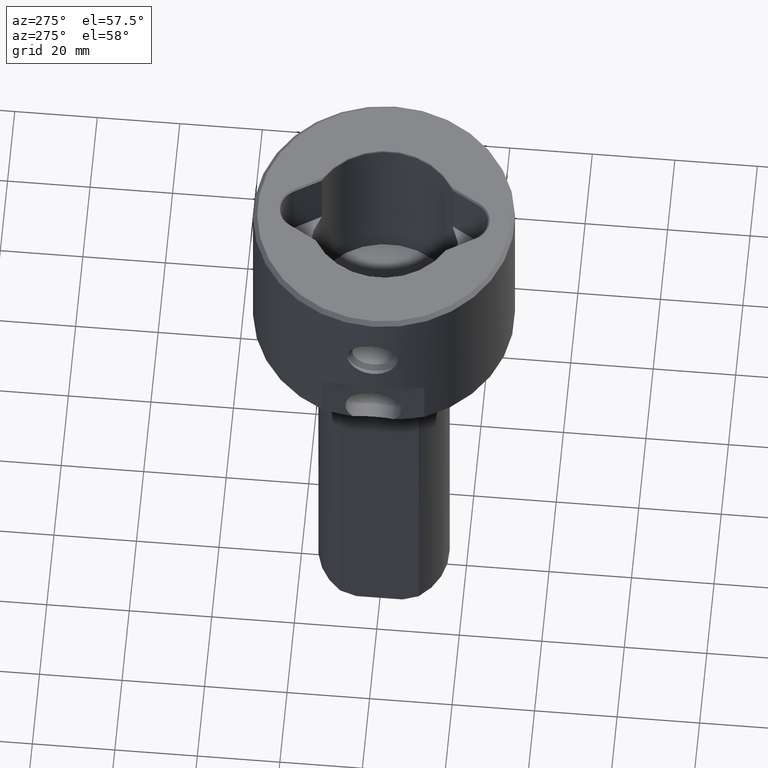
[diagram: clean part render]
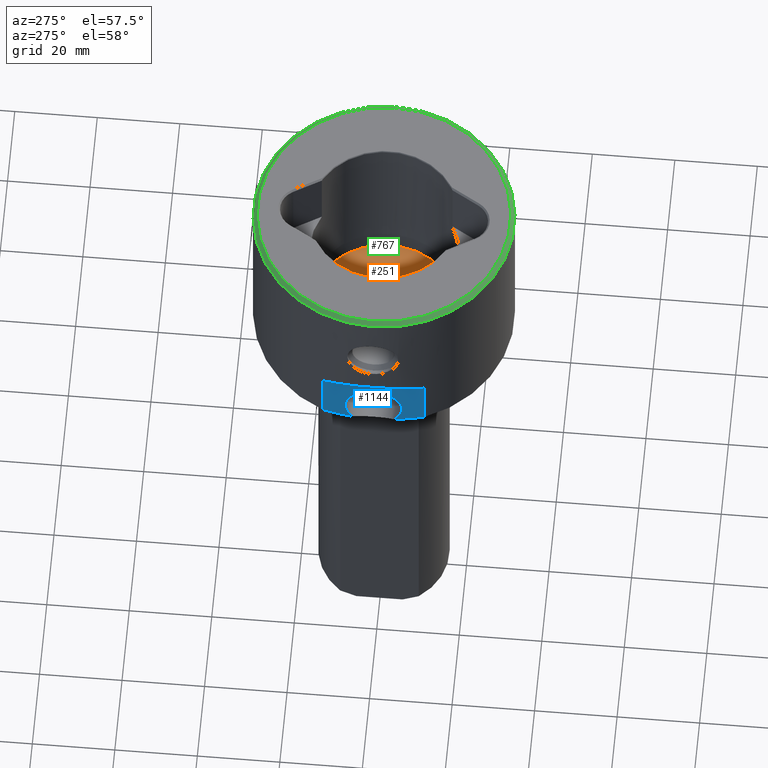
[diagram: same view with three faces highlighted in distinct colors, each labeled with its STEP entity id]
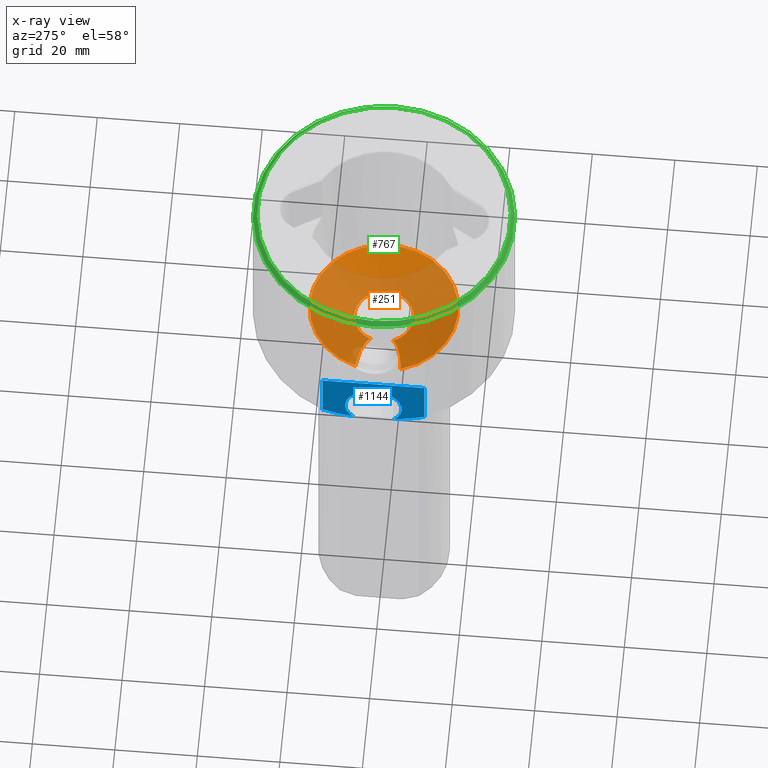
[diagram: x-ray of the same camera — body ghosted, the three highlighted faces saturated]
A machine part, auxiliary view with three faces highlighted in distinct colors.
The next image is the same camera in x-ray (body ghosted, the three faces saturated) — at least one of them is partly hidden behind the body in this view.
Their STEP definitions:

[orange] entity #251 — the highlighted conical surface has half-angle 70 deg.
#18 = CARTESIAN_POINT ( 'NONE',  ( -9.952558135182792753, 4.327179257612058016, -44.60151783015965776 ) ) ;
#97 = CARTESIAN_POINT ( 'NONE',  ( -8.227909259180822943, -3.692058294718687961, -45.26908084020720935 ) ) ;
#123 = CARTESIAN_POINT ( 'NONE',  ( 0.0000000000000000000, 0.0000000000000000000, -45.93087853007491361 ) ) ;
#125 = CARTESIAN_POINT ( 'NONE',  ( -7.411388599976899805, 3.278204621278549613, -45.60185016130601099 ) ) ;
#142 = B_SPLINE_CURVE_WITH_KNOTS ( 'NONE', 3,
 ( #654, #148, #1211, #1483, #1732, #1455, #1622, #18, #1322, #1061, #391, #125, #911, #273 ),
 .UNSPECIFIED., .F., .F.,
 ( 4, 2, 2, 2, 2, 2, 4 ),
 ( 0.001178261122928602085, 0.004078453685199937701, 0.006978646247471274183, 0.008428742528606938955, 0.009878838809742603727, 0.01132893509087826850, 0.01277903137201393327 ),
 .UNSPECIFIED. ) ;
#145 = VERTEX_POINT ( 'NONE', #747 ) ;
#148 = CARTESIAN_POINT ( 'NONE',  ( -16.22859241719893220, 5.436403773805147388, -42.32268432431284566 ) ) ;
#219 = AXIS2_PLACEMENT_3D ( 'NONE', #123, #1046, #256 ) ;
#250 = EDGE_CURVE ( 'NONE', #1371, #760, #1607, .T. ) ;
#251 = ADVANCED_FACE ( 'NONE', ( #1238 ), #688, .F. ) ;
#256 = DIRECTION ( 'NONE',  ( 1.000000000000000000, 0.0000000000000000000, 0.0000000000000000000 ) ) ;
#273 = CARTESIAN_POINT ( 'NONE',  ( -6.650929905835639921, 2.757740268346736023, -45.93087853007490651 ) ) ;
#289 = ORIENTED_EDGE ( 'NONE', *, *, #250, .T. ) ;
#361 = CARTESIAN_POINT ( 'NONE',  ( -8.647591155585143241, -3.868828942142455762, -45.10338040326255538 ) ) ;
#375 = CARTESIAN_POINT ( 'NONE',  ( -12.60742369322300505, -4.974291744531540438, -43.61881184046358584 ) ) ;
#390 = DIRECTION ( 'NONE',  ( 1.000000000000000000, 0.0000000000000000000, 0.0000000000000000000 ) ) ;
#391 = CARTESIAN_POINT ( 'NONE',  ( -8.229353170079122037, 3.692831171962911885, -45.26848633789317233 ) ) ;
#424 = CIRCLE ( 'NONE', #1556, 18.00000000000000000 ) ;
#501 = CARTESIAN_POINT ( 'NONE',  ( 0.0000000000000000000, 0.0000000000000000000, 951.4485357832083992 ) ) ;
#504 = CARTESIAN_POINT ( 'NONE',  ( -16.22819745588730100, -5.436380911248716252, -42.32282376836635507 ) ) ;
#556 = DIRECTION ( 'NONE',  ( -0.0000000000000000000, -0.0000000000000000000, -1.000000000000000000 ) ) ;
#617 = CARTESIAN_POINT ( 'NONE',  ( -7.025709045907139405, -3.031115366510974241, -45.76650404395257965 ) ) ;
#653 = EDGE_LOOP ( 'NONE', ( #1670, #1504, #289, #1654 ) ) ;
#654 = CARTESIAN_POINT ( 'NONE',  ( -17.14256343841258357, 5.489309497559776929, -42.00000000000000000 ) ) ;
#688 = CONICAL_SURFACE ( 'NONE', #1569, 2747.477419454672599, 1.221730476396036602 ) ;
#711 = VERTEX_POINT ( 'NONE', #1564 ) ;
#747 = CARTESIAN_POINT ( 'NONE',  ( -17.14256343841258712, -5.489309497559776929, -42.00000000000000000 ) ) ;
#749 = CARTESIAN_POINT ( 'NONE',  ( -7.417434559441274722, -3.272207817807922137, -45.60073064672852894 ) ) ;
#760 = VERTEX_POINT ( 'NONE', #1573 ) ;
#911 = CARTESIAN_POINT ( 'NONE',  ( -7.012361516030026998, 3.039391861956601826, -45.77009577875826096 ) ) ;
#1023 = CARTESIAN_POINT ( 'NONE',  ( -13.50759466753032711, -5.123268542052286101, -43.29385429920696993 ) ) ;
#1046 = DIRECTION ( 'NONE',  ( -0.0000000000000000000, -0.0000000000000000000, -1.000000000000000000 ) ) ;
#1061 = CARTESIAN_POINT ( 'NONE',  ( -8.651611653052105666, 3.870555427139979354, -45.10178846906217132 ) ) ;
#1069 = EDGE_CURVE ( 'NONE', #711, #145, #424, .T. ) ;
#1078 = CARTESIAN_POINT ( 'NONE',  ( 0.0000000000000000000, 0.0000000000000000000, -42.00000000000000000 ) ) ;
#1095 = DIRECTION ( 'NONE',  ( -1.000000000000000000, 0.0000000000000000000, 0.0000000000000000000 ) ) ;
#1114 = CARTESIAN_POINT ( 'NONE',  ( -6.650929905835639921, 2.757740268346736023, -45.93087853007490651 ) ) ;
#1160 = CARTESIAN_POINT ( 'NONE',  ( -6.833205513848491286, -2.899781567516482639, -45.84979327652319370 ) ) ;
#1171 = CARTESIAN_POINT ( 'NONE',  ( -9.931275399981435825, -4.342493809770374469, -44.60638836685973274 ) ) ;
#1211 = CARTESIAN_POINT ( 'NONE',  ( -15.31910871248162564, 5.354646910762014933, -42.64541245520003798 ) ) ;
#1238 = FACE_OUTER_BOUND ( 'NONE', #653, .T. ) ;
#1240 = EDGE_CURVE ( 'NONE', #760, #145, #1671, .T. ) ;
#1295 = CARTESIAN_POINT ( 'NONE',  ( -6.650929905835645251, -2.757740268346724921, -45.93087853007491361 ) ) ;
#1322 = CARTESIAN_POINT ( 'NONE',  ( -9.513165514355620189, 4.187969129770283239, -44.76829999233605406 ) ) ;
#1371 = VERTEX_POINT ( 'NONE', #1114 ) ;
#1419 = CARTESIAN_POINT ( 'NONE',  ( -7.617617286812301103, -3.382762448870290317, -45.51779805564478920 ) ) ;
#1429 = CARTESIAN_POINT ( 'NONE',  ( -15.31793541715394369, -5.354558346984777728, -42.64582733475223364 ) ) ;
#1444 = CARTESIAN_POINT ( 'NONE',  ( -17.14256343841258712, -5.489309497559776929, -42.00000000000000000 ) ) ;
#1455 = CARTESIAN_POINT ( 'NONE',  ( -11.27686255322357844, 4.683529655643834388, -44.10719578305269550 ) ) ;
#1483 = CARTESIAN_POINT ( 'NONE',  ( -13.51119081381207288, 5.123789162297266664, -43.29256192978570539 ) ) ;
#1504 = ORIENTED_EDGE ( 'NONE', *, *, #1552, .T. ) ;
#1552 = EDGE_CURVE ( 'NONE', #711, #1371, #142, .T. ) ;
#1556 = AXIS2_PLACEMENT_3D ( 'NONE', #1078, #556, #1095 ) ;
#1564 = CARTESIAN_POINT ( 'NONE',  ( -17.14256343841258357, 5.489309497559776929, -42.00000000000000000 ) ) ;
#1569 = AXIS2_PLACEMENT_3D ( 'NONE', #501, #1731, #390 ) ;
#1573 = CARTESIAN_POINT ( 'NONE',  ( -6.650929905835645251, -2.757740268346724921, -45.93087853007491361 ) ) ;
#1607 = CIRCLE ( 'NONE', #219, 7.200000000000000178 ) ;
#1622 = CARTESIAN_POINT ( 'NONE',  ( -10.83362282545898658, 4.574736681123973803, -44.27126027642211881 ) ) ;
#1654 = ORIENTED_EDGE ( 'NONE', *, *, #1240, .T. ) ;
#1670 = ORIENTED_EDGE ( 'NONE', *, *, #1069, .F. ) ;
#1671 = B_SPLINE_CURVE_WITH_KNOTS ( 'NONE', 3,
 ( #1295, #1160, #617, #749, #1419, #97, #361, #1171, #1707, #375, #1023, #1429, #504, #1444 ),
 .UNSPECIFIED., .F., .F.,
 ( 4, 2, 2, 2, 2, 2, 4 ),
 ( 0.001253697054113798526, 0.001985376607094136749, 0.002717056160074474321, 0.004180415266035151199, 0.007107133477956508426, 0.01003385168987786652, 0.01296056990179922375 ),
 .UNSPECIFIED. ) ;
#1707 = CARTESIAN_POINT ( 'NONE',  ( -10.82196367763201650, -4.583941856030605777, -44.27418785012874736 ) ) ;
#1731 = DIRECTION ( 'NONE',  ( 0.0000000000000000000, 0.0000000000000000000, 1.000000000000000000 ) ) ;
#1732 = CARTESIAN_POINT ( 'NONE',  ( -12.61266044193465774, 4.975164055077202718, -43.61692121384217558 ) ) ;

[blue] entity #1144 — the highlighted planar face has unit normal (1, 0, 0).
#15 = FACE_OUTER_BOUND ( 'NONE', #78, .T. ) ;
#19 = VECTOR ( 'NONE', #127, 1000.000000000000000 ) ;
#46 = CARTESIAN_POINT ( 'NONE',  ( -29.13500000000000156, -6.170436145164875263, -45.67976493171396868 ) ) ;
#47 = PLANE ( 'NONE',  #1368 ) ;
#74 = DIRECTION ( 'NONE',  ( -0.0000000000000000000, -0.0000000000000000000, -1.000000000000000000 ) ) ;
#78 = EDGE_LOOP ( 'NONE', ( #427, #1092, #393, #200, #187, #1722 ) ) ;
#120 = CARTESIAN_POINT ( 'NONE',  ( -29.13500000000001933, 12.32578597899539652, -43.79999999999999005 ) ) ;
#127 = DIRECTION ( 'NONE',  ( 0.0000000000000000000, 0.0000000000000000000, 1.000000000000000000 ) ) ;
#187 = ORIENTED_EDGE ( 'NONE', *, *, #1588, .T. ) ;
#200 = ORIENTED_EDGE ( 'NONE', *, *, #436, .T. ) ;
#254 = CARTESIAN_POINT ( 'NONE',  ( -29.13500000000000512, 6.172300948374835450, -45.67945512524126883 ) ) ;
#269 = CARTESIAN_POINT ( 'NONE',  ( -29.13499999999999801, 9.890781248021655259, -44.67229161043078278 ) ) ;
#298 = DIRECTION ( 'NONE',  ( 1.000000000000000000, 0.0000000000000000000, 0.0000000000000000000 ) ) ;
#314 = CARTESIAN_POINT ( 'NONE',  ( -29.13500000000000512, -12.32578597899539830, -43.79999999999999716 ) ) ;
#331 = VERTEX_POINT ( 'NONE', #793 ) ;
#393 = ORIENTED_EDGE ( 'NONE', *, *, #1354, .T. ) ;
#401 = CARTESIAN_POINT ( 'NONE',  ( -29.13500000000000512, -4.908514856564666573, -45.88941245977468952 ) ) ;
#427 = ORIENTED_EDGE ( 'NONE', *, *, #1310, .T. ) ;
#436 = EDGE_CURVE ( 'NONE', #859, #331, #960, .T. ) ;
#440 = CARTESIAN_POINT ( 'NONE',  ( -29.13500000000000512, -7.419201499962479573, -45.39359722333632874 ) ) ;
#486 = CIRCLE ( 'NONE', #1191, 6.857987299999999564 ) ;
#514 = CARTESIAN_POINT ( 'NONE',  ( -29.13500000000000512, -12.32578597899539830, -43.79999999999999716 ) ) ;
#552 = CARTESIAN_POINT ( 'NONE',  ( -29.13500000000000512, 0.0000000000000000000, -41.09999999999998721 ) ) ;
#639 = CARTESIAN_POINT ( 'NONE',  ( -29.13500000000000512, -31.63500000000000512, -30.79999999999999716 ) ) ;
#703 = CARTESIAN_POINT ( 'NONE',  ( -29.13500000000000867, -11.12539445642427438, -44.26770251298283654 ) ) ;
#758 = VERTEX_POINT ( 'NONE', #1405 ) ;
#773 = CARTESIAN_POINT ( 'NONE',  ( -29.13500000000000156, 11.72461879510585803, -44.03422974699599024 ) ) ;
#793 = CARTESIAN_POINT ( 'NONE',  ( -29.13500000000000512, -12.32578597899542494, -30.79999999999999716 ) ) ;
#819 = CARTESIAN_POINT ( 'NONE',  ( -29.13500000000000512, -31.63500000000000512, -30.79999999999999716 ) ) ;
#859 = VERTEX_POINT ( 'NONE', #514 ) ;
#878 = VECTOR ( 'NONE', #1047, 1000.000000000000000 ) ;
#960 = LINE ( 'NONE', #1080, #19 ) ;
#962 = DIRECTION ( 'NONE',  ( 1.000000000000000000, 0.0000000000000000000, 0.0000000000000000000 ) ) ;
#1008 = VERTEX_POINT ( 'NONE', #401 ) ;
#1041 = CARTESIAN_POINT ( 'NONE',  ( -29.13500000000000512, 9.275794440310253464, -44.86479439027544203 ) ) ;
#1047 = DIRECTION ( 'NONE',  ( -0.0000000000000000000, 1.000000000000000000, -0.0000000000000000000 ) ) ;
#1055 = CARTESIAN_POINT ( 'NONE',  ( -29.13500000000000867, 4.908514856564326401, -45.88941245977504479 ) ) ;
#1056 = CARTESIAN_POINT ( 'NONE',  ( -29.13500000000000512, 11.11493347922117358, -44.25714856644276551 ) ) ;
#1071 = VECTOR ( 'NONE', #74, 1000.000000000000000 ) ;
#1080 = CARTESIAN_POINT ( 'NONE',  ( -29.13500000000000512, -12.32578597899540718, -50.79999999999999716 ) ) ;
#1092 = ORIENTED_EDGE ( 'NONE', *, *, #1677, .T. ) ;
#1101 = DIRECTION ( 'NONE',  ( 0.0000000000000000000, 0.0000000000000000000, -1.000000000000000000 ) ) ;
#1105 = DIRECTION ( 'NONE',  ( 0.0000000000000000000, 0.0000000000000000000, -1.000000000000000000 ) ) ;
#1108 = CARTESIAN_POINT ( 'NONE',  ( -29.13499999999999801, -9.893950608018712956, -44.68875488735892532 ) ) ;
#1121 = B_SPLINE_CURVE_WITH_KNOTS ( 'NONE', 3,
 ( #120, #773, #1056, #269, #1041, #1337, #254, #1195 ),
 .UNSPECIFIED., .F., .F.,
 ( 4, 2, 2, 4 ),
 ( 0.02408350280861197221, 0.02599435145048144963, 0.02790520009235093052, 0.03172689737608988536 ),
 .UNSPECIFIED. ) ;
#1144 = ADVANCED_FACE ( 'NONE', ( #15 ), #47, .F. ) ;
#1149 = CARTESIAN_POINT ( 'NONE',  ( -29.13500000000001933, 12.32578597899539652, -43.79999999999999005 ) ) ;
#1191 = AXIS2_PLACEMENT_3D ( 'NONE', #552, #962, #1101 ) ;
#1195 = CARTESIAN_POINT ( 'NONE',  ( -29.13500000000000867, 4.908514856564326401, -45.88941245977504479 ) ) ;
#1237 = CARTESIAN_POINT ( 'NONE',  ( -29.13500000000000512, -4.908514856564666573, -45.88941245977468952 ) ) ;
#1255 = B_SPLINE_CURVE_WITH_KNOTS ( 'NONE', 3,
 ( #1237, #46, #440, #1108, #703, #314 ),
 .UNSPECIFIED., .F., .F.,
 ( 4, 2, 4 ),
 ( 0.04148733940963419964, 0.04530998257043347688, 0.04913262573123276106 ),
 .UNSPECIFIED. ) ;
#1274 = CARTESIAN_POINT ( 'NONE',  ( -29.13500000000000512, 12.32578597899540718, -50.79999999999999716 ) ) ;
#1310 = EDGE_CURVE ( 'NONE', #1439, #1522, #1121, .T. ) ;
#1327 = LINE ( 'NONE', #639, #878 ) ;
#1337 = CARTESIAN_POINT ( 'NONE',  ( -29.13500000000000867, 7.421317262977400020, -45.39303420204430495 ) ) ;
#1354 = EDGE_CURVE ( 'NONE', #1008, #859, #1255, .T. ) ;
#1368 = AXIS2_PLACEMENT_3D ( 'NONE', #819, #298, #1105 ) ;
#1405 = CARTESIAN_POINT ( 'NONE',  ( -29.13500000000000512, 12.32578597899542494, -30.79999999999999716 ) ) ;
#1439 = VERTEX_POINT ( 'NONE', #1149 ) ;
#1471 = EDGE_CURVE ( 'NONE', #758, #1439, #1708, .T. ) ;
#1522 = VERTEX_POINT ( 'NONE', #1055 ) ;
#1588 = EDGE_CURVE ( 'NONE', #331, #758, #1327, .T. ) ;
#1677 = EDGE_CURVE ( 'NONE', #1522, #1008, #486, .T. ) ;
#1708 = LINE ( 'NONE', #1274, #1071 ) ;
#1722 = ORIENTED_EDGE ( 'NONE', *, *, #1471, .T. ) ;

[green] entity #767 — the highlighted conical surface has half-angle 45 deg.
#89 = CARTESIAN_POINT ( 'NONE',  ( 0.0000000000000000000, 0.0000000000000000000, -1.000000000000014655 ) ) ;
#133 = CONICAL_SURFACE ( 'NONE', #829, 30.63500000000000512, 0.7853981633974396193 ) ;
#164 = CARTESIAN_POINT ( 'NONE',  ( 0.0000000000000000000, 0.0000000000000000000, 0.0000000000000000000 ) ) ;
#211 = DIRECTION ( 'NONE',  ( -1.000000000000000000, 0.0000000000000000000, 0.0000000000000000000 ) ) ;
#265 = CIRCLE ( 'NONE', #1201, 30.63500000000000512 ) ;
#290 = ORIENTED_EDGE ( 'NONE', *, *, #701, .F. ) ;
#296 = DIRECTION ( 'NONE',  ( 1.000000000000000000, 0.0000000000000000000, 0.0000000000000000000 ) ) ;
#420 = CARTESIAN_POINT ( 'NONE',  ( 30.63500000000000512, 0.0000000000000000000, 0.0000000000000000000 ) ) ;
#483 = VERTEX_POINT ( 'NONE', #420 ) ;
#555 = EDGE_CURVE ( 'NONE', #483, #483, #265, .T. ) ;
#618 = DIRECTION ( 'NONE',  ( 0.0000000000000000000, 0.0000000000000000000, -1.000000000000000000 ) ) ;
#701 = EDGE_CURVE ( 'NONE', #1562, #1562, #1199, .T. ) ;
#767 = ADVANCED_FACE ( 'NONE', ( #1044, #1604 ), #133, .T. ) ;
#829 = AXIS2_PLACEMENT_3D ( 'NONE', #861, #994, #211 ) ;
#854 = DIRECTION ( 'NONE',  ( 0.0000000000000000000, 0.0000000000000000000, 1.000000000000000000 ) ) ;
#861 = CARTESIAN_POINT ( 'NONE',  ( 0.0000000000000000000, 0.0000000000000000000, 0.0000000000000000000 ) ) ;
#994 = DIRECTION ( 'NONE',  ( 0.0000000000000000000, 0.0000000000000000000, -1.000000000000000000 ) ) ;
#1044 = FACE_OUTER_BOUND ( 'NONE', #1077, .T. ) ;
#1049 = EDGE_LOOP ( 'NONE', ( #1094 ) ) ;
#1077 = EDGE_LOOP ( 'NONE', ( #290 ) ) ;
#1094 = ORIENTED_EDGE ( 'NONE', *, *, #555, .F. ) ;
#1199 = CIRCLE ( 'NONE', #1626, 31.63500000000000512 ) ;
#1201 = AXIS2_PLACEMENT_3D ( 'NONE', #164, #854, #296 ) ;
#1420 = DIRECTION ( 'NONE',  ( 1.000000000000000000, 0.0000000000000000000, 0.0000000000000000000 ) ) ;
#1562 = VERTEX_POINT ( 'NONE', #1663 ) ;
#1604 = FACE_BOUND ( 'NONE', #1049, .T. ) ;
#1626 = AXIS2_PLACEMENT_3D ( 'NONE', #89, #618, #1420 ) ;
#1663 = CARTESIAN_POINT ( 'NONE',  ( 31.63500000000000512, 0.0000000000000000000, -1.000000000000014655 ) ) ;